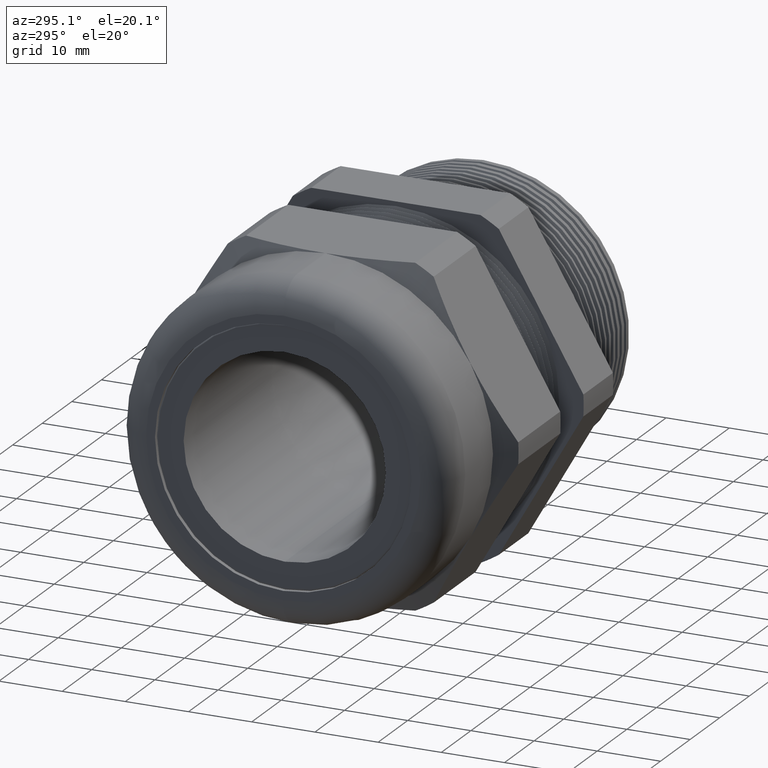
[diagram: clean part render]
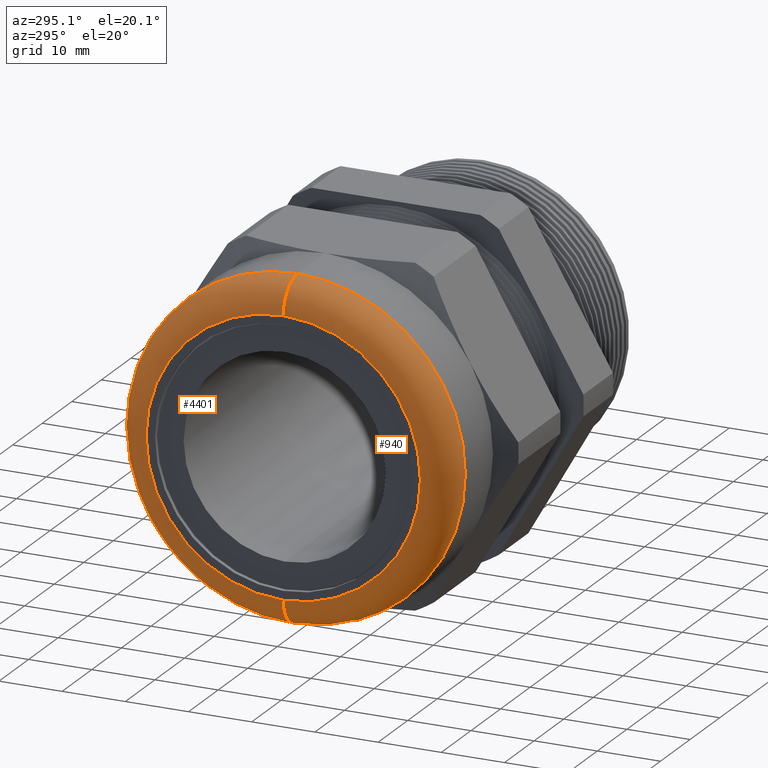
[diagram: same view with one multi-face feature highlighted, each face labeled with its STEP entity id]
A machine part, auxiliary view. The highlighted faces form ONE feature: a constant-radius fillet chain: 2 tangent blend faces with common blend radius 4.8362 mm. The faces share edges in the B-rep.
Their STEP definitions:
[1] entity #4401 (Torus):
#414 = EDGE_CURVE ( 'NONE', #4392, #418, #1928, .T. ) ;
#415 = ORIENTED_EDGE ( 'NONE', *, *, #416, .F. ) ;
#416 = EDGE_CURVE ( 'NONE', #418, #434, #1923, .T. ) ;
#417 = ORIENTED_EDGE ( 'NONE', *, *, #414, .F. ) ;
#418 = VERTEX_POINT ( 'NONE', #1918 ) ;
#434 = VERTEX_POINT ( 'NONE', #1952 ) ;
#1918 = CARTESIAN_POINT ( 'NONE',  ( -1.699599999999999600, 1.279755905108984100E-016, -1.044999999999999900 ) ) ;
#1919 = DIRECTION ( 'NONE',  ( 0.0000000000000000000, 0.0000000000000000000, -1.000000000000000000 ) ) ;
#1920 = DIRECTION ( 'NONE',  ( 1.000000000000000000, 0.0000000000000000000, 0.0000000000000000000 ) ) ;
#1921 = CARTESIAN_POINT ( 'NONE',  ( -1.699599999999999600, 0.0000000000000000000, 0.0000000000000000000 ) ) ;
#1922 = AXIS2_PLACEMENT_3D ( 'NONE', #1921, #1920, #1919 ) ;
#1923 = CIRCLE ( 'NONE', #1922, 1.044999999999999900 ) ;
#1924 = DIRECTION ( 'NONE',  ( 0.0000000000000000000, 0.0000000000000000000, -1.000000000000000000 ) ) ;
#1925 = DIRECTION ( 'NONE',  ( 0.0000000000000000000, -1.000000000000000000, 0.0000000000000000000 ) ) ;
#1926 = CARTESIAN_POINT ( 'NONE',  ( -1.699599999999999600, 0.0000000000000000000, -0.8545999999999998000 ) ) ;
#1927 = AXIS2_PLACEMENT_3D ( 'NONE', #1926, #1925, #1924 ) ;
#1928 = CIRCLE ( 'NONE', #1927, 0.1904000000000001000 ) ;
#1952 = CARTESIAN_POINT ( 'NONE',  ( -1.699599999999999600, 0.0000000000000000000, 1.044999999999999900 ) ) ;
#3846 = TOROIDAL_SURFACE ( 'NONE', #3909, 0.8545999999999998000, 0.1904000000000001500 ) ;
#3847 = FACE_OUTER_BOUND ( 'NONE', #4395, .T. ) ;
#3853 = DIRECTION ( 'NONE',  ( 0.0000000000000000000, 1.224646799147353500E-016, 1.000000000000000000 ) ) ;
#3854 = DIRECTION ( 'NONE',  ( 0.0000000000000000000, 1.000000000000000000, -1.224646799147353200E-016 ) ) ;
#3855 = CARTESIAN_POINT ( 'NONE',  ( -1.699599999999999600, 1.046583154551327900E-016, 0.8545999999999998000 ) ) ;
#3856 = AXIS2_PLACEMENT_3D ( 'NONE', #3855, #3854, #3853 ) ;
#3857 = CIRCLE ( 'NONE', #3856, 0.1904000000000001000 ) ;
#3858 = CARTESIAN_POINT ( 'NONE',  ( -1.889999999999999700, 1.163169529830156000E-016, 0.8545999999999998000 ) ) ;
#3859 = CARTESIAN_POINT ( 'NONE',  ( -1.889999999999999700, 0.0000000000000000000, -0.8545999999999998000 ) ) ;
#3860 = DIRECTION ( 'NONE',  ( 0.0000000000000000000, 0.0000000000000000000, -1.000000000000000000 ) ) ;
#3861 = DIRECTION ( 'NONE',  ( -1.000000000000000000, 0.0000000000000000000, 0.0000000000000000000 ) ) ;
#3862 = CARTESIAN_POINT ( 'NONE',  ( -1.889999999999999700, 0.0000000000000000000, 0.0000000000000000000 ) ) ;
#3863 = AXIS2_PLACEMENT_3D ( 'NONE', #3862, #3861, #3860 ) ;
#3864 = CIRCLE ( 'NONE', #3863, 0.8545999999999998000 ) ;
#3906 = DIRECTION ( 'NONE',  ( 0.0000000000000000000, 0.0000000000000000000, -1.000000000000000000 ) ) ;
#3907 = DIRECTION ( 'NONE',  ( 1.000000000000000000, 0.0000000000000000000, 0.0000000000000000000 ) ) ;
#3908 = CARTESIAN_POINT ( 'NONE',  ( -1.699599999999999600, 0.0000000000000000000, 0.0000000000000000000 ) ) ;
#3909 = AXIS2_PLACEMENT_3D ( 'NONE', #3908, #3907, #3906 ) ;
#4390 = EDGE_CURVE ( 'NONE', #4393, #4392, #3864, .T. ) ;
#4391 = ORIENTED_EDGE ( 'NONE', *, *, #4390, .F. ) ;
#4392 = VERTEX_POINT ( 'NONE', #3859 ) ;
#4393 = VERTEX_POINT ( 'NONE', #3858 ) ;
#4394 = EDGE_CURVE ( 'NONE', #4393, #434, #3857, .T. ) ;
#4395 = EDGE_LOOP ( 'NONE', ( #4391, #4396, #415, #417 ) ) ;
#4396 = ORIENTED_EDGE ( 'NONE', *, *, #4394, .T. ) ;
#4401 = ADVANCED_FACE ( 'NONE', ( #3847 ), #3846, .T. ) ;
[2] entity #940 (Torus):
#414 = EDGE_CURVE ( 'NONE', #4392, #418, #1928, .T. ) ;
#418 = VERTEX_POINT ( 'NONE', #1918 ) ;
#434 = VERTEX_POINT ( 'NONE', #1952 ) ;
#938 = ORIENTED_EDGE ( 'NONE', *, *, #4441, .F. ) ;
#939 = EDGE_LOOP ( 'NONE', ( #941, #938, #974, #973 ) ) ;
#940 = ADVANCED_FACE ( 'NONE', ( #2951 ), #2950, .T. ) ;
#941 = ORIENTED_EDGE ( 'NONE', *, *, #4394, .F. ) ;
#973 = ORIENTED_EDGE ( 'NONE', *, *, #4341, .F. ) ;
#974 = ORIENTED_EDGE ( 'NONE', *, *, #414, .T. ) ;
#1918 = CARTESIAN_POINT ( 'NONE',  ( -1.699599999999999600, 1.279755905108984100E-016, -1.044999999999999900 ) ) ;
#1924 = DIRECTION ( 'NONE',  ( 0.0000000000000000000, 0.0000000000000000000, -1.000000000000000000 ) ) ;
#1925 = DIRECTION ( 'NONE',  ( 0.0000000000000000000, -1.000000000000000000, 0.0000000000000000000 ) ) ;
#1926 = CARTESIAN_POINT ( 'NONE',  ( -1.699599999999999600, 0.0000000000000000000, -0.8545999999999998000 ) ) ;
#1927 = AXIS2_PLACEMENT_3D ( 'NONE', #1926, #1925, #1924 ) ;
#1928 = CIRCLE ( 'NONE', #1927, 0.1904000000000001000 ) ;
#1952 = CARTESIAN_POINT ( 'NONE',  ( -1.699599999999999600, 0.0000000000000000000, 1.044999999999999900 ) ) ;
#2945 = DIRECTION ( 'NONE',  ( 0.0000000000000000000, 0.0000000000000000000, -1.000000000000000000 ) ) ;
#2946 = DIRECTION ( 'NONE',  ( 1.000000000000000000, 0.0000000000000000000, 0.0000000000000000000 ) ) ;
#2947 = CARTESIAN_POINT ( 'NONE',  ( -1.699599999999999600, 0.0000000000000000000, 0.0000000000000000000 ) ) ;
#2948 = AXIS2_PLACEMENT_3D ( 'NONE', #2947, #2946, #2945 ) ;
#2950 = TOROIDAL_SURFACE ( 'NONE', #2948, 0.8545999999999998000, 0.1904000000000001500 ) ;
#2951 = FACE_OUTER_BOUND ( 'NONE', #939, .T. ) ;
#3793 = DIRECTION ( 'NONE',  ( 0.0000000000000000000, 0.0000000000000000000, -1.000000000000000000 ) ) ;
#3794 = DIRECTION ( 'NONE',  ( 1.000000000000000000, 0.0000000000000000000, 0.0000000000000000000 ) ) ;
#3795 = CARTESIAN_POINT ( 'NONE',  ( -1.699599999999999600, 0.0000000000000000000, 0.0000000000000000000 ) ) ;
#3796 = AXIS2_PLACEMENT_3D ( 'NONE', #3795, #3794, #3793 ) ;
#3801 = CIRCLE ( 'NONE', #3796, 1.044999999999999900 ) ;
#3853 = DIRECTION ( 'NONE',  ( 0.0000000000000000000, 1.224646799147353500E-016, 1.000000000000000000 ) ) ;
#3854 = DIRECTION ( 'NONE',  ( 0.0000000000000000000, 1.000000000000000000, -1.224646799147353200E-016 ) ) ;
#3855 = CARTESIAN_POINT ( 'NONE',  ( -1.699599999999999600, 1.046583154551327900E-016, 0.8545999999999998000 ) ) ;
#3856 = AXIS2_PLACEMENT_3D ( 'NONE', #3855, #3854, #3853 ) ;
#3857 = CIRCLE ( 'NONE', #3856, 0.1904000000000001000 ) ;
#3858 = CARTESIAN_POINT ( 'NONE',  ( -1.889999999999999700, 1.163169529830156000E-016, 0.8545999999999998000 ) ) ;
#3859 = CARTESIAN_POINT ( 'NONE',  ( -1.889999999999999700, 0.0000000000000000000, -0.8545999999999998000 ) ) ;
#3914 = CARTESIAN_POINT ( 'NONE',  ( -1.889999999999999700, 0.0000000000000000000, 0.0000000000000000000 ) ) ;
#3969 = DIRECTION ( 'NONE',  ( 0.0000000000000000000, 0.0000000000000000000, -1.000000000000000000 ) ) ;
#3970 = DIRECTION ( 'NONE',  ( -1.000000000000000000, 0.0000000000000000000, 0.0000000000000000000 ) ) ;
#3971 = AXIS2_PLACEMENT_3D ( 'NONE', #3914, #3970, #3969 ) ;
#3972 = CIRCLE ( 'NONE', #3971, 0.8545999999999998000 ) ;
#4341 = EDGE_CURVE ( 'NONE', #434, #418, #3801, .T. ) ;
#4392 = VERTEX_POINT ( 'NONE', #3859 ) ;
#4393 = VERTEX_POINT ( 'NONE', #3858 ) ;
#4394 = EDGE_CURVE ( 'NONE', #4393, #434, #3857, .T. ) ;
#4441 = EDGE_CURVE ( 'NONE', #4392, #4393, #3972, .T. ) ;